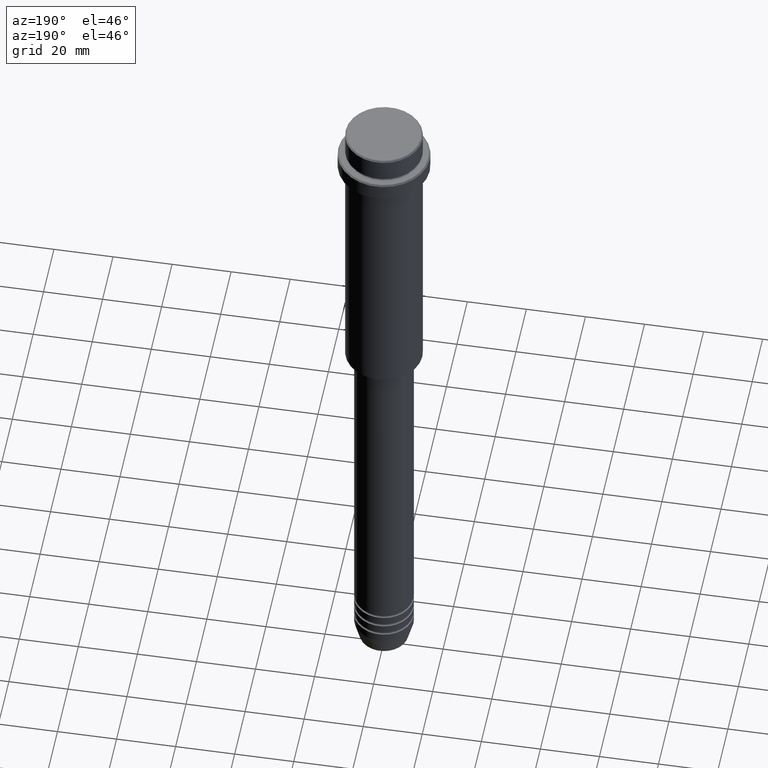
[diagram: clean part render]
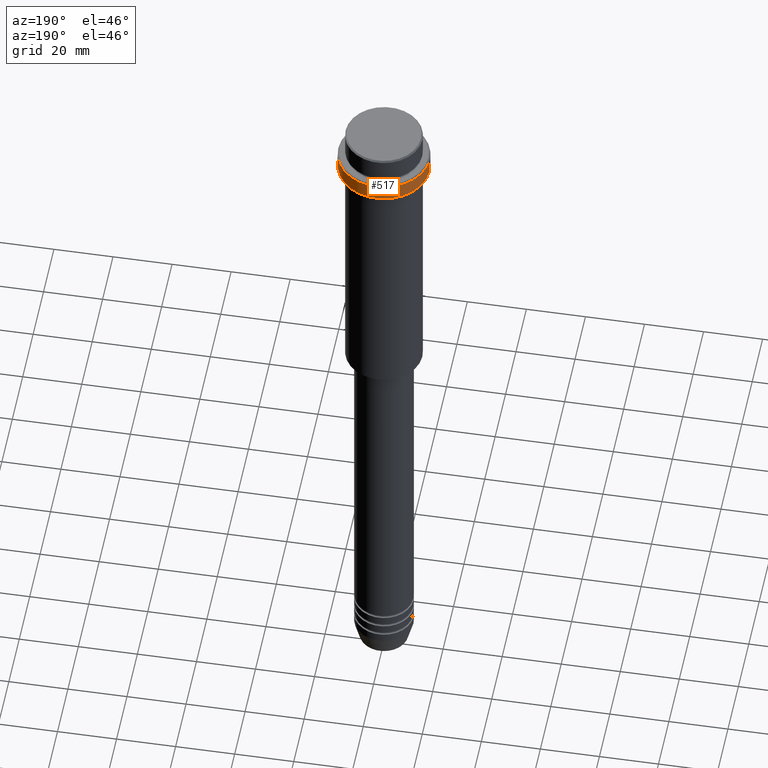
[diagram: same view with one face highlighted and labeled with its STEP entity id]
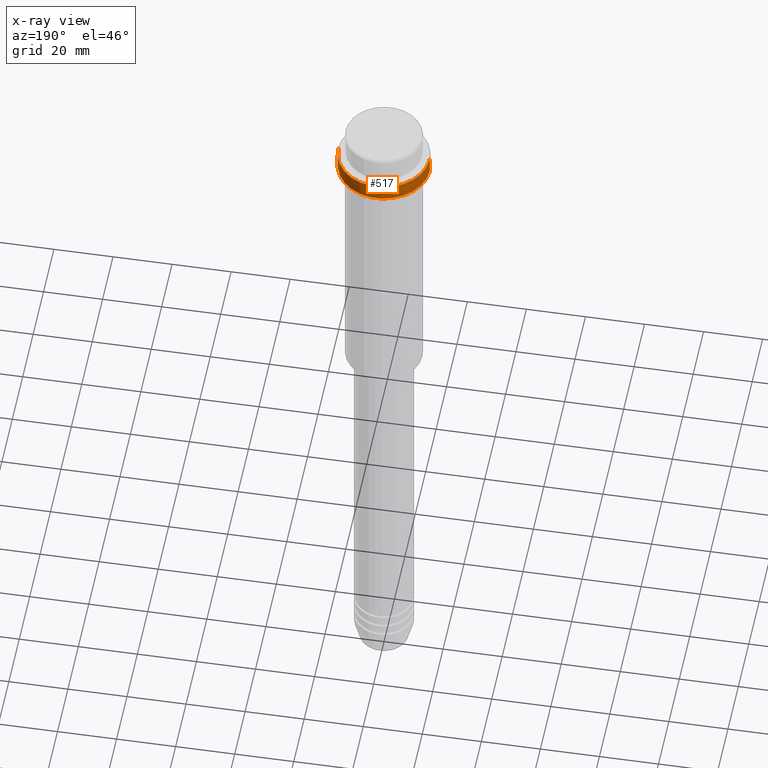
[diagram: x-ray of the same camera — body ghosted, the highlighted face saturated]
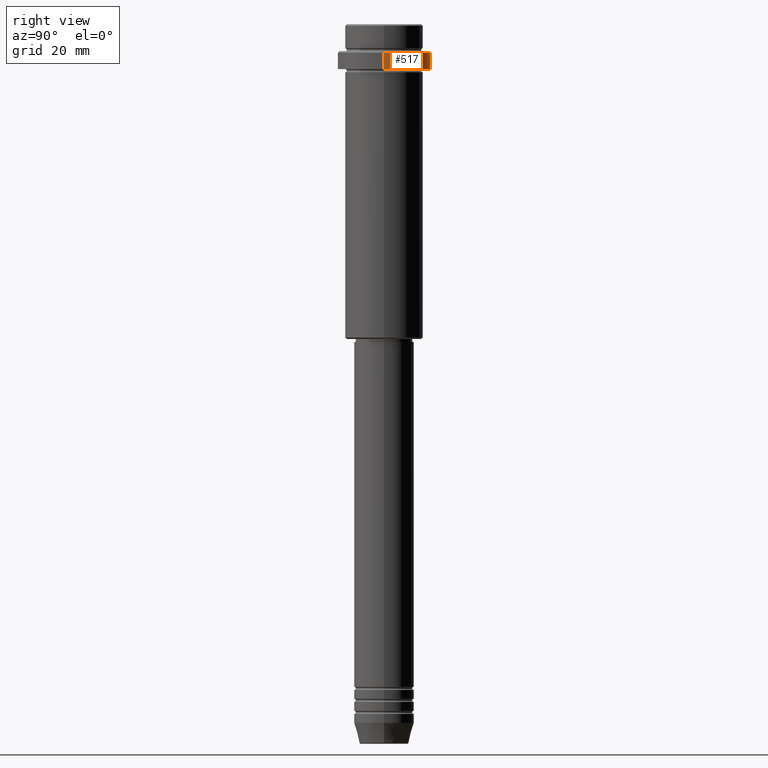
[diagram: same view with one face highlighted and labeled with its STEP entity id]
A machine part, auxiliary view. The second image highlights one B-rep face of the part: STEP entity #517.
The next image is the same camera in x-ray: the body ghosted, the highlighted face saturated — about 0% of this face is hidden behind the body in this view.
A second angle (right view) of the same face is appended — the face is thin or edge-on in the first view.
In plain terms, the highlighted cylindrical surface (partial cylindrical patch) has radius 15.5 mm, axis along (-0, -0, 1).
Its self-contained STEP definition (entity closure, byte-faithful):
#83 = CYLINDRICAL_SURFACE ( 'NONE', #1264, 15.50000000000000000 ) ;
#91 = CARTESIAN_POINT ( 'NONE',  ( -15.50000000000000000, 1.898202538678397557E-15, 0.000000000000000000 ) ) ;
#121 = CARTESIAN_POINT ( 'NONE',  ( 0.000000000000000000, 0.000000000000000000, -9.500000000000014211 ) ) ;
#213 = DIRECTION ( 'NONE',  ( 1.000000000000000000, 0.000000000000000000, 0.000000000000000000 ) ) ;
#226 = ORIENTED_EDGE ( 'NONE', *, *, #921, .T. ) ;
#242 = ORIENTED_EDGE ( 'NONE', *, *, #664, .T. ) ;
#246 = AXIS2_PLACEMENT_3D ( 'NONE', #121, #977, #993 ) ;
#251 = VECTOR ( 'NONE', #862, 1000.000000000000000 ) ;
#303 = EDGE_CURVE ( 'NONE', #1109, #1322, #981, .T. ) ;
#321 = CIRCLE ( 'NONE', #1223, 15.50000000000000000 ) ;
#377 = CARTESIAN_POINT ( 'NONE',  ( 15.50000000000000000, 0.000000000000000000, -15.00000000000000178 ) ) ;
#452 = CARTESIAN_POINT ( 'NONE',  ( 0.000000000000000000, 0.000000000000000000, -15.00000000000000178 ) ) ;
#503 = CARTESIAN_POINT ( 'NONE',  ( 15.50000000000000000, 0.000000000000000000, 0.000000000000000000 ) ) ;
#517 = ADVANCED_FACE ( 'NONE', ( #1074 ), #83, .T. ) ;
#534 = CARTESIAN_POINT ( 'NONE',  ( 0.000000000000000000, 0.000000000000000000, 0.000000000000000000 ) ) ;
#578 = VERTEX_POINT ( 'NONE', #1217 ) ;
#617 = CARTESIAN_POINT ( 'NONE',  ( 15.50000000000000000, 0.000000000000000000, -9.500000000000014211 ) ) ;
#653 = EDGE_LOOP ( 'NONE', ( #242, #226, #897, #809 ) ) ;
#664 = EDGE_CURVE ( 'NONE', #778, #578, #321, .T. ) ;
#695 = DIRECTION ( 'NONE',  ( 1.000000000000000000, 0.000000000000000000, 0.000000000000000000 ) ) ;
#729 = LINE ( 'NONE', #503, #984 ) ;
#769 = EDGE_CURVE ( 'NONE', #778, #1322, #729, .T. ) ;
#778 = VERTEX_POINT ( 'NONE', #377 ) ;
#809 = ORIENTED_EDGE ( 'NONE', *, *, #769, .F. ) ;
#835 = LINE ( 'NONE', #91, #251 ) ;
#862 = DIRECTION ( 'NONE',  ( -0.000000000000000000, -0.000000000000000000, 1.000000000000000000 ) ) ;
#897 = ORIENTED_EDGE ( 'NONE', *, *, #303, .T. ) ;
#921 = EDGE_CURVE ( 'NONE', #578, #1109, #835, .T. ) ;
#937 = DIRECTION ( 'NONE',  ( -0.000000000000000000, -0.000000000000000000, 1.000000000000000000 ) ) ;
#977 = DIRECTION ( 'NONE',  ( 0.000000000000000000, 0.000000000000000000, -1.000000000000000000 ) ) ;
#981 = CIRCLE ( 'NONE', #246, 15.50000000000000000 ) ;
#984 = VECTOR ( 'NONE', #937, 1000.000000000000000 ) ;
#993 = DIRECTION ( 'NONE',  ( 1.000000000000000000, 0.000000000000000000, 0.000000000000000000 ) ) ;
#1074 = FACE_OUTER_BOUND ( 'NONE', #653, .T. ) ;
#1109 = VERTEX_POINT ( 'NONE', #1301 ) ;
#1217 = CARTESIAN_POINT ( 'NONE',  ( -15.50000000000000000, 1.898202538678397557E-15, -15.00000000000000178 ) ) ;
#1223 = AXIS2_PLACEMENT_3D ( 'NONE', #452, #1416, #695 ) ;
#1264 = AXIS2_PLACEMENT_3D ( 'NONE', #534, #1403, #213 ) ;
#1301 = CARTESIAN_POINT ( 'NONE',  ( -15.50000000000000000, 1.898202538678397557E-15, -9.500000000000014211 ) ) ;
#1322 = VERTEX_POINT ( 'NONE', #617 ) ;
#1403 = DIRECTION ( 'NONE',  ( -0.000000000000000000, -0.000000000000000000, 1.000000000000000000 ) ) ;
#1416 = DIRECTION ( 'NONE',  ( -0.000000000000000000, -0.000000000000000000, 1.000000000000000000 ) ) ;